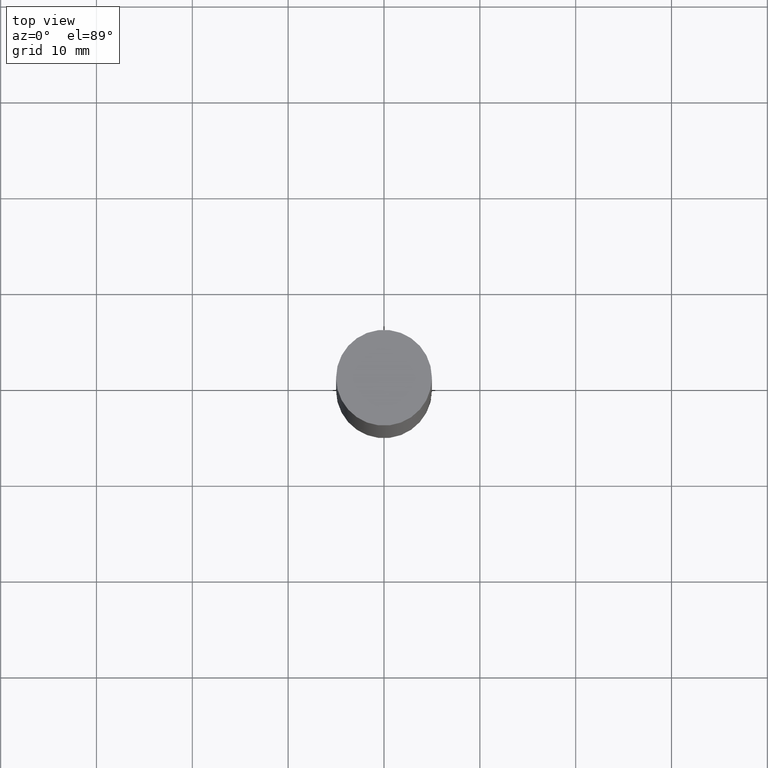
[diagram: clean part render]
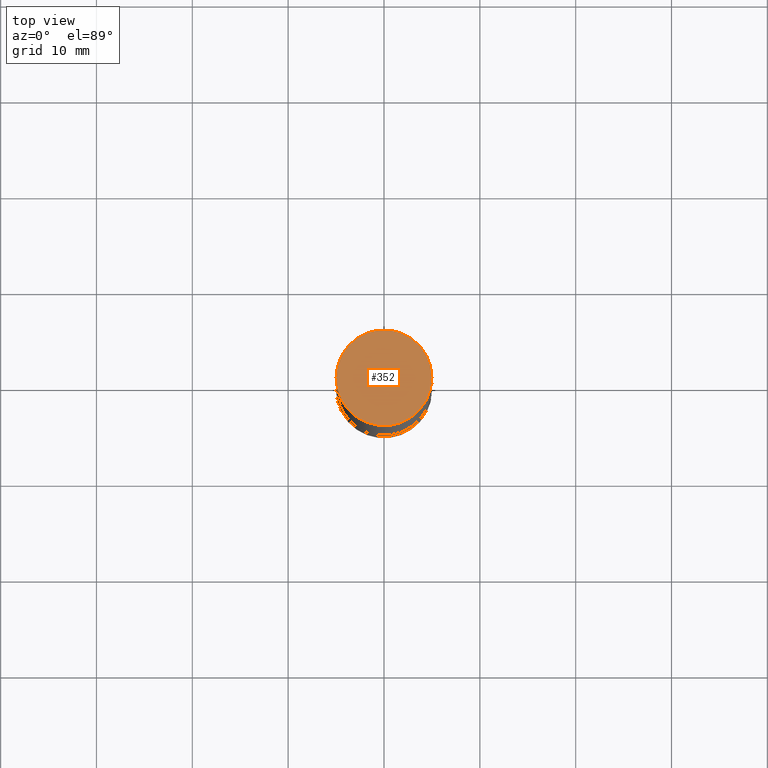
[diagram: same view with one face highlighted and labeled with its STEP entity id]
A machine part, top view. The second image highlights one B-rep face of the part: STEP entity #352.
In plain terms, the highlighted planar face has unit normal (0, 0, 1).
Its self-contained STEP definition (entity closure, byte-faithful):
#95 = CIRCLE ( 'NONE', #613, 0.1968500000000000250 ) ;
#102 = PLANE ( 'NONE',  #406 ) ;
#165 = EDGE_CURVE ( 'NONE', #560, #228, #211, .T. ) ;
#171 = DIRECTION ( 'NONE',  ( 2.438088387897959769E-29, 3.492890411551753071E-15, 1.000000000000000000 ) ) ;
#176 = EDGE_LOOP ( 'NONE', ( #254, #277 ) ) ;
#203 = AXIS2_PLACEMENT_3D ( 'NONE', #321, #523, #339 ) ;
#211 = CIRCLE ( 'NONE', #203, 0.1968500000000000250 ) ;
#228 = VERTEX_POINT ( 'NONE', #403 ) ;
#254 = ORIENTED_EDGE ( 'NONE', *, *, #266, .T. ) ;
#266 = EDGE_CURVE ( 'NONE', #228, #560, #95, .T. ) ;
#277 = ORIENTED_EDGE ( 'NONE', *, *, #165, .T. ) ;
#314 = DIRECTION ( 'NONE',  ( -1.000000000000000000, 6.982962677686265922E-15, -9.839502134516470631E-33 ) ) ;
#321 = CARTESIAN_POINT ( 'NONE',  ( 7.220980290903470182E-29, 2.080354946989631982E-18, 5.463695987328526437E-16 ) ) ;
#339 = DIRECTION ( 'NONE',  ( 1.000000000000000000, -6.982962677686265922E-15, 0.000000000000000000 ) ) ;
#352 = ADVANCED_FACE ( 'NONE', ( #477 ), #102, .T. ) ;
#372 = DIRECTION ( 'NONE',  ( 1.000000000000000000, -6.982962677686265922E-15, 0.000000000000000000 ) ) ;
#403 = CARTESIAN_POINT ( 'NONE',  ( 0.1968500000000000250, -1.372515848155552113E-15, 5.463695987328526437E-16 ) ) ;
#406 = AXIS2_PLACEMENT_3D ( 'NONE', #482, #171, #314 ) ;
#477 = FACE_OUTER_BOUND ( 'NONE', #176, .T. ) ;
#479 = CARTESIAN_POINT ( 'NONE',  ( -0.1968500000000000250, 3.899287883846529545E-16, 5.463695987328561936E-16 ) ) ;
#482 = CARTESIAN_POINT ( 'NONE',  ( 1.374596203102613789E-15, 0.1968500000000000250, -5.463695987328526437E-16 ) ) ;
#520 = CARTESIAN_POINT ( 'NONE',  ( 7.220980290903470182E-29, 2.080354946989631982E-18, 5.463695987328526437E-16 ) ) ;
#523 = DIRECTION ( 'NONE',  ( 2.445468806185136597E-29, 3.492890411551752677E-15, 1.000000000000000000 ) ) ;
#560 = VERTEX_POINT ( 'NONE', #479 ) ;
#613 = AXIS2_PLACEMENT_3D ( 'NONE', #520, #621, #372 ) ;
#621 = DIRECTION ( 'NONE',  ( 2.445468806185136597E-29, 3.492890411551752677E-15, 1.000000000000000000 ) ) ;